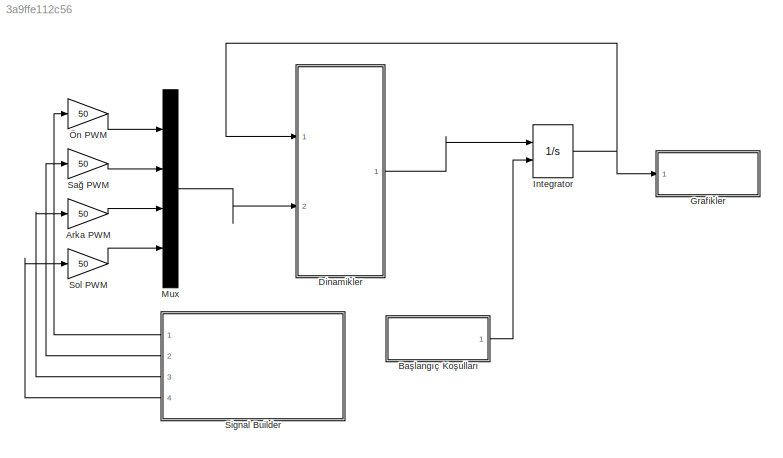
MODEL slx_3a9ffe112c56
KIND model
BLOCK [Gain] Arka PWM
  Gain = 50
  OutDataTypeStr = Inherit: Inherit via internal rule
  ParamDataTypeStr = Inherit: Inherit via internal rule
  SaturateOnIntegerOverflow = off
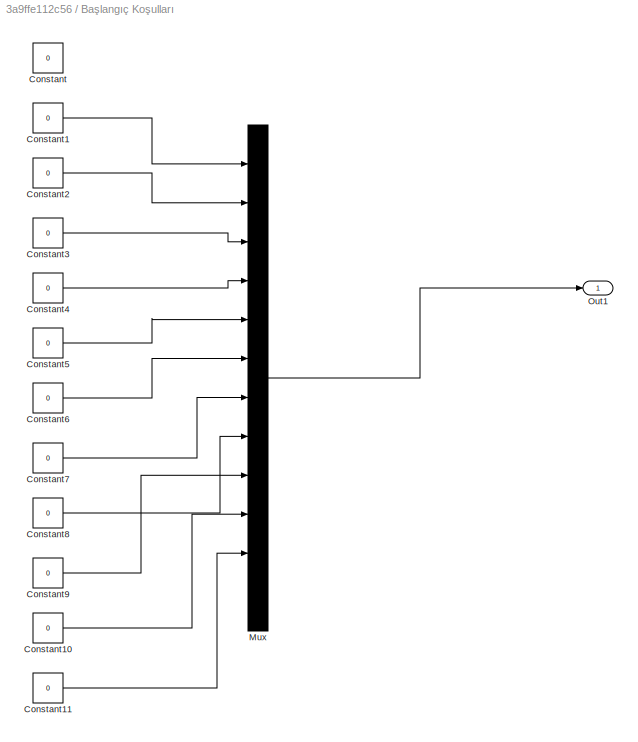
BLOCK [SubSystem] Başlangıç Koşulları
  FunctionWithSeparateData = off
  MaskHideContents = off
  MinAlgLoopOccurrences = off
  Opaque = off
  Ports = [0, 1]
  PropExecContextOutsideSubsystem = off
  RTWSystemCode = Auto
  RequestExecContextInheritance = off
BLOCK [Constant] Başlangıç Koşulları/Constant
  Value = 0
BLOCK [Constant] Başlangıç Koşulları/Constant1
  Value = 0
BLOCK [Constant] Başlangıç Koşulları/Constant10
  Value = 0
BLOCK [Constant] Başlangıç Koşulları/Constant11
  Value = 0
BLOCK [Constant] Başlangıç Koşulları/Constant2
  Value = 0
BLOCK [Constant] Başlangıç Koşulları/Constant3
  Value = 0
BLOCK [Constant] Başlangıç Koşulları/Constant4
  Value = 0
BLOCK [Constant] Başlangıç Koşulları/Constant5
  Value = 0
BLOCK [Constant] Başlangıç Koşulları/Constant6
  Value = 0
BLOCK [Constant] Başlangıç Koşulları/Constant7
  Value = 0
BLOCK [Constant] Başlangıç Koşulları/Constant8
  Value = 0
BLOCK [Constant] Başlangıç Koşulları/Constant9
  Value = 0
BLOCK [Mux] Başlangıç Koşulları/Mux
  DisplayOption = bar
  Inputs = 12
  Ports = [12, 1]
BLOCK [Outport] Başlangıç Koşulları/Out1
  IconDisplay = Port number
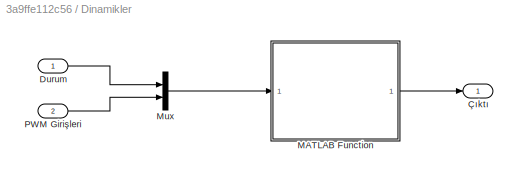
BLOCK [SubSystem] Dinamikler
  FunctionWithSeparateData = off
  MaskHideContents = off
  MinAlgLoopOccurrences = off
  Opaque = off
  Ports = [2, 1]
  PropExecContextOutsideSubsystem = off
  RTWSystemCode = Auto
  RequestExecContextInheritance = off
BLOCK [Inport] Dinamikler/Durum
  IconDisplay = Port number
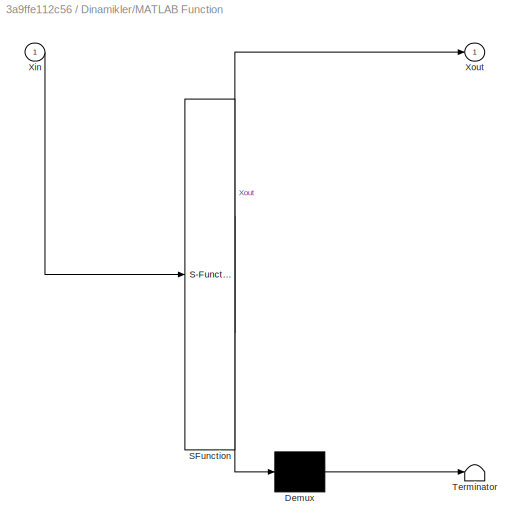
BLOCK [SubSystem] Dinamikler/MATLAB Function
  ErrorFcn = Stateflow.Translate.translate
  FunctionWithSeparateData = off
  MaskHideContents = off
  MinAlgLoopOccurrences = off
  Opaque = off
  PermitHierarchicalResolution = ExplicitOnly
  Ports = [1, 1]
  PropExecContextOutsideSubsystem = off
  RTWSystemCode = Auto
  RequestExecContextInheritance = off
  SFBlockType = MATLAB Function
  TreatAsAtomicUnit = on
BLOCK [Demux] Dinamikler/MATLAB Function/ Demux 
  Outputs = 1
  Ports = [1, 1]
BLOCK [S-Function] Dinamikler/MATLAB Function/ SFunction 
  EnableBusSupport = on
  FunctionName = sf_sfun
  PortCounts = [1 2]
  Ports = [1, 2]
  Tag = Stateflow S-Function Quadsim 2
BLOCK [Terminator] Dinamikler/MATLAB Function/ Terminator 
BLOCK [Inport] Dinamikler/MATLAB Function/Xin
  IconDisplay = Port number
BLOCK [Outport] Dinamikler/MATLAB Function/Xout
  IconDisplay = Port number
BLOCK [Mux] Dinamikler/Mux
  DisplayOption = bar
  Inputs = 2
  Ports = [2, 1]
BLOCK [Inport] Dinamikler/PWM Girişleri
  IconDisplay = Port number
  Port = 2
BLOCK [Outport] Dinamikler/Çıktı
  IconDisplay = Port number
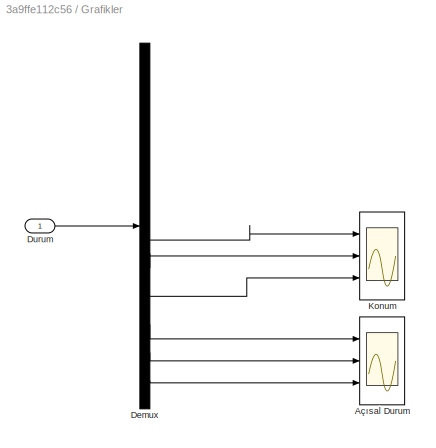
BLOCK [SubSystem] Grafikler
  FunctionWithSeparateData = off
  MaskHideContents = off
  MinAlgLoopOccurrences = off
  Opaque = off
  Ports = [1]
  PropExecContextOutsideSubsystem = off
  RTWSystemCode = Auto
  RequestExecContextInheritance = off
BLOCK [Scope] Grafikler/Açısal Durum
  DataFormat = StructureWithTime
  Floating = off
  NumInputPorts = 3
  Ports = [3]
  SampleTime = 0
  ShowLegends = off
  YMax = 5~5~5
  YMin = -5~-5~-5
BLOCK [Demux] Grafikler/Demux
  DisplayOption = bar
  Outputs = 12
  Ports = [1, 12]
BLOCK [Inport] Grafikler/Durum
  IconDisplay = Port number
BLOCK [Scope] Grafikler/Konum
  DataFormat = StructureWithTime
  Floating = off
  NumInputPorts = 3
  Ports = [3]
  SampleTime = 0
  SaveName = ScopeData1
  ShowLegends = off
  YMax = 5~5~5
  YMin = -5~-5~-5
BLOCK [Integrator] Integrator
  InitialConditionSource = external
  Ports = [2, 1]
BLOCK [Mux] Mux
  DisplayOption = bar
  Ports = [4, 1]
BLOCK [Gain] Sağ PWM
  Gain = 50
  OutDataTypeStr = Inherit: Inherit via internal rule
  ParamDataTypeStr = Inherit: Inherit via internal rule
  SaturateOnIntegerOverflow = off
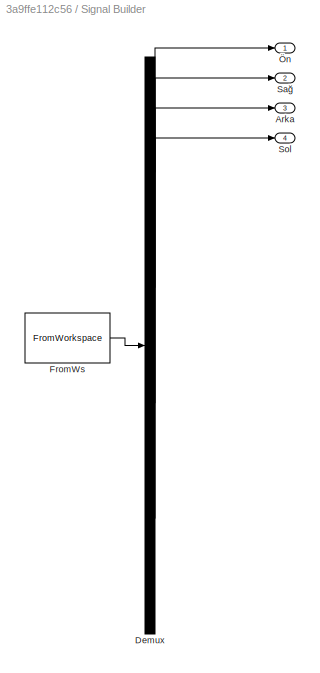
BLOCK [SubSystem] Signal Builder
  ClipboardFcn = sigbuilder_block('clipboard');
  CloseFcn = sigbuilder_block('close');
  ContinueFcn = sigbuilder_block('continue');
  CopyFcn = sigbuilder_block('copy');
  DeleteFcn = sigbuilder_block('delete');
  FunctionWithSeparateData = off
  LoadFcn = sigbuilder_block('load',[0 30 1024.5 489 ]);
  MaskHideContents = on
  MinAlgLoopOccurrences = off
  ModelCloseFcn = sigbuilder_block('modelClose');
  NameChangeFcn = sigbuilder_block('namechange');
  Opaque = off
  OpenFcn = sigbuilder_block('open',[6 28.5 1012.5 484.5 ]);
  PauseFcn = sigbuilder_block('pause');
  Ports = [0, 4]
  PreSaveFcn = sigbuilder_block('preSave');
  PropExecContextOutsideSubsystem = off
  RTWSystemCode = Auto
  RequestExecContextInheritance = off
  StartFcn = sigbuilder_block('start');
  StopFcn = sigbuilder_block('stop');
  Tag = STV Subsys
BLOCK [Outport] Signal Builder/Arka
  IconDisplay = Port number
  Port = 3
  Tag = STV Outport
BLOCK [Demux] Signal Builder/Demux
  Ports = [1, 4]
  Tag = STV Demux
BLOCK [FromWorkspace] Signal Builder/FromWs
  SampleTime = 0
  Tag = STV FromWs
  VariableName = tuvar
  ZeroCross = on
BLOCK [Outport] Signal Builder/Sağ
  IconDisplay = Port number
  Port = 2
  Tag = STV Outport
BLOCK [Outport] Signal Builder/Sol
  IconDisplay = Port number
  Port = 4
  Tag = STV Outport
BLOCK [Outport] Signal Builder/Ön
  IconDisplay = Port number
  Tag = STV Outport
BLOCK [Gain] Sol PWM
  Gain = 50
  OutDataTypeStr = Inherit: Inherit via internal rule
  ParamDataTypeStr = Inherit: Inherit via internal rule
  SaturateOnIntegerOverflow = off
BLOCK [Gain] Ön PWM
  Gain = 50
  OutDataTypeStr = Inherit: Inherit via internal rule
  ParamDataTypeStr = Inherit: Inherit via internal rule
  SaturateOnIntegerOverflow = off
LINE Arka PWM:1 -> Mux:3
LINE Başlangıç Koşulları/Constant10:1 -> Başlangıç Koşulları/Mux:10
LINE Başlangıç Koşulları/Constant11:1 -> Başlangıç Koşulları/Mux:11
LINE Başlangıç Koşulları/Constant1:1 -> Başlangıç Koşulları/Mux:1
LINE Başlangıç Koşulları/Constant2:1 -> Başlangıç Koşulları/Mux:2
LINE Başlangıç Koşulları/Constant3:1 -> Başlangıç Koşulları/Mux:3
LINE Başlangıç Koşulları/Constant4:1 -> Başlangıç Koşulları/Mux:4
LINE Başlangıç Koşulları/Constant5:1 -> Başlangıç Koşulları/Mux:5
LINE Başlangıç Koşulları/Constant6:1 -> Başlangıç Koşulları/Mux:6
LINE Başlangıç Koşulları/Constant7:1 -> Başlangıç Koşulları/Mux:7
LINE Başlangıç Koşulları/Constant8:1 -> Başlangıç Koşulları/Mux:8
LINE Başlangıç Koşulları/Constant9:1 -> Başlangıç Koşulları/Mux:9
LINE Başlangıç Koşulları/Mux:1 -> Başlangıç Koşulları/Out1:1
LINE Başlangıç Koşulları:1 -> Integrator:2
LINE Dinamikler/Durum:1 -> Dinamikler/Mux:1
LINE Dinamikler/MATLAB Function:1 -> Dinamikler/Çıktı:1
LINE Dinamikler/Mux:1 -> Dinamikler/MATLAB Function:1
LINE Dinamikler/PWM Girişleri:1 -> Dinamikler/Mux:2
LINE Dinamikler:1 -> Integrator:1
LINE Grafikler/Demux:10 -> Grafikler/Açısal Durum:1
LINE Grafikler/Demux:11 -> Grafikler/Açısal Durum:2
LINE Grafikler/Demux:12 -> Grafikler/Açısal Durum:3
LINE Grafikler/Demux:7 -> Grafikler/Konum:1
LINE Grafikler/Demux:8 -> Grafikler/Konum:2
LINE Grafikler/Demux:9 -> Grafikler/Konum:3
LINE Grafikler/Durum:1 -> Grafikler/Demux:1
NET Integrator:1 -> Dinamikler:1, Grafikler:1
LINE Mux:1 -> Dinamikler:2
LINE Sağ PWM:1 -> Mux:2
LINE Signal Builder:1 -> Ön PWM:1
LINE Signal Builder:2 -> Sağ PWM:1
LINE Signal Builder:3 -> Arka PWM:1
LINE Signal Builder:4 -> Sol PWM:1
LINE Sol PWM:1 -> Mux:4
LINE Ön PWM:1 -> Mux:1
note: NET lines group one-source signal fan-out (src -> all destinations, sorted); 1:1 wires keep LINE
